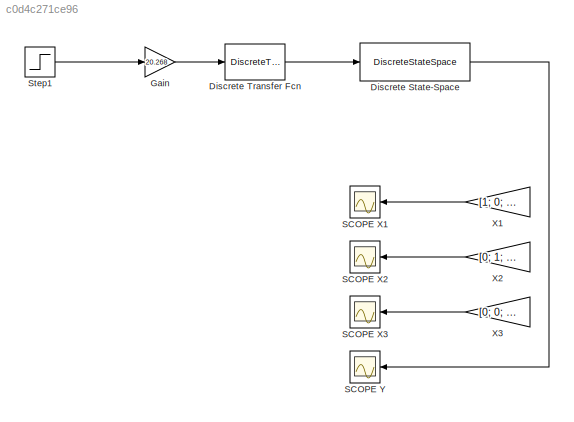
MODEL slx_c0d4c271ce96
KIND model
CONFIG AbsTol = auto
CONFIG EnableMultiTasking = off
CONFIG FixedStep = auto
CONFIG MaxStep = auto
CONFIG MinStep = auto
CONFIG RelTol = 1e-3
CONFIG SampleTimeConstraint = Unconstrained
CONFIG SolverName = VariableStepAuto
CONFIG StartTime = 0.0
CONFIG StopTime = 200
BLOCK [DiscreteStateSpace] Discrete State-Space
  A = [0.8796    0.4676   -0.4676;\n   -0.4209    0.8495    0.1505;\n    0.0468    0.0167    0.9833;]
  B = [0.1084;\n    0.4238;\n    0.0029;]
  C = [0 0 1]
  D = 0
  SampleTime = 0.5
BLOCK [DiscreteTransferFcn] Discrete Transfer Fcn
  Denominator = [1 -1.9831 0.9832]
  InputPortMap = u0
  Numerator = [1 -2 1]
  Ports = [1, 1]
BLOCK [Gain] Gain
  Gain = 20.268
BLOCK [Scope] SCOPE X1
  Floating = off
  NameLocation = top
  NumInputPorts = 1
  Ports = [1]
  ScopeSpecificationString = Simulink.scopes.TimeScopeBlockCfg('CurrentConfiguration', extmgr.ConfigurationSet(extmgr.Configuration('Core','General UI',true),extmgr.Configuration('Core','Source UI',true),extmgr.Configuration('Sources','WiredSimulink',true,'DataLoggingVariableName','ScopeData1'),extmgr.Configuration('Visuals','Time Domain',true,'SerializedDisplays',{struct('MinYLimReal','-1.00000','MaxYLimReal','1.00000','YLab...<+1484ch>
BLOCK [Scope] SCOPE X2
  Floating = off
  NameLocation = top
  NumInputPorts = 1
  Ports = [1]
  ScopeSpecificationString = Simulink.scopes.TimeScopeBlockCfg('CurrentConfiguration', extmgr.ConfigurationSet(extmgr.Configuration('Core','General UI',true),extmgr.Configuration('Core','Source UI',true),extmgr.Configuration('Sources','WiredSimulink',true,'DataLoggingVariableName','ScopeData2'),extmgr.Configuration('Visuals','Time Domain',true,'SerializedDisplays',{struct('MinYLimReal','-40.79347','MaxYLimReal','367.05158','Y...<+1380ch>
BLOCK [Scope] SCOPE X3
  Floating = off
  NameLocation = top
  NumInputPorts = 1
  Ports = [1]
  ScopeSpecificationString = Simulink.scopes.TimeScopeBlockCfg('CurrentConfiguration', extmgr.ConfigurationSet(extmgr.Configuration('Core','General UI',true),extmgr.Configuration('Core','Source UI',true),extmgr.Configuration('Sources','WiredSimulink',true,'DataLoggingVariableName','ScopeData1'),extmgr.Configuration('Visuals','Time Domain',true,'SerializedDisplays',{struct('MinYLimReal','-40.79347','MaxYLimReal','367.05158','Y...<+1380ch>
BLOCK [Scope] SCOPE Y
  Floating = off
  NameLocation = top
  NumInputPorts = 1
  Ports = [1]
  ScopeSpecificationString = Simulink.scopes.TimeScopeBlockCfg('CurrentConfiguration', extmgr.ConfigurationSet(extmgr.Configuration('Core','General UI',true),extmgr.Configuration('Core','Source UI',true),extmgr.Configuration('Sources','WiredSimulink',true),extmgr.Configuration('Visuals','Time Domain',true,'SerializedDisplays',{struct('MinYLimReal','-4.71256','MaxYLimReal','42.41301','YLabelReal','','MinYLimMag','0.00000','Max...<+1344ch>
BLOCK [Step] Step1
  SampleTime = 0
BLOCK [Gain] X1
  Gain = [1; 0; 0;]
  Multiplication = Matrix(K*u)
BLOCK [Gain] X2
  Gain = [0; 1; 0;]
  Multiplication = Matrix(K*u)
BLOCK [Gain] X3
  Gain = [0; 0; 1;]
  Multiplication = Matrix(K*u)
LINE Discrete State-Space:1 -> SCOPE Y:1
LINE Discrete Transfer Fcn:1 -> Discrete State-Space:1
LINE Gain:1 -> Discrete Transfer Fcn:1
LINE Step1:1 -> Gain:1
LINE X1:1 -> SCOPE X1:1
LINE X2:1 -> SCOPE X2:1
LINE X3:1 -> SCOPE X3:1
